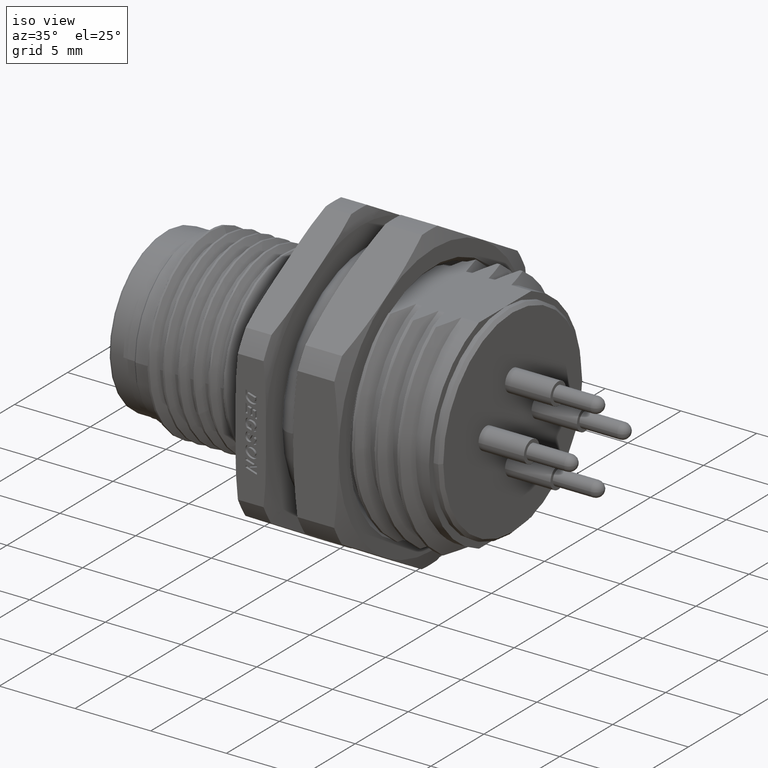
[diagram: clean part render]
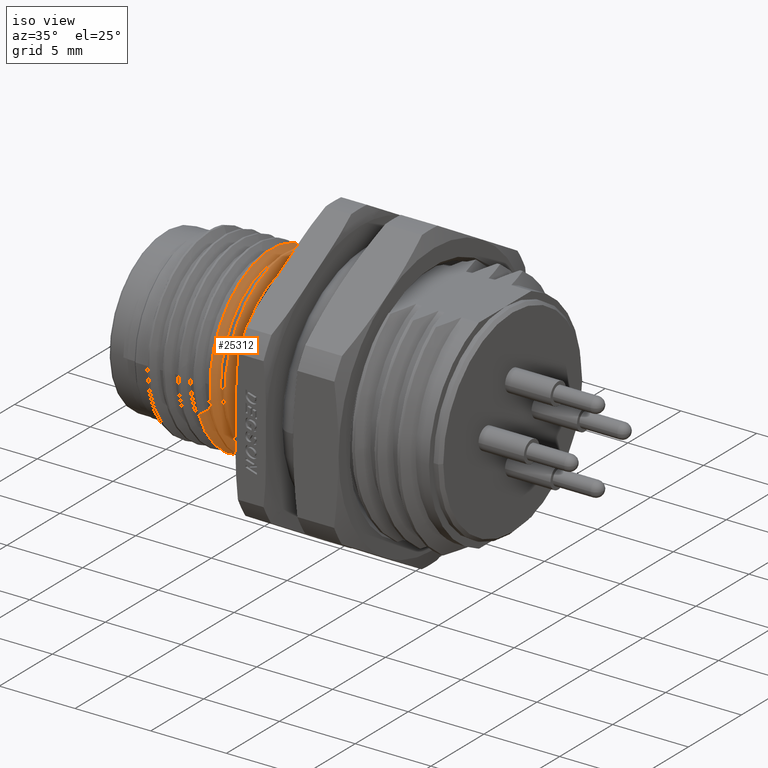
[diagram: same view with one face highlighted and labeled with its STEP entity id]
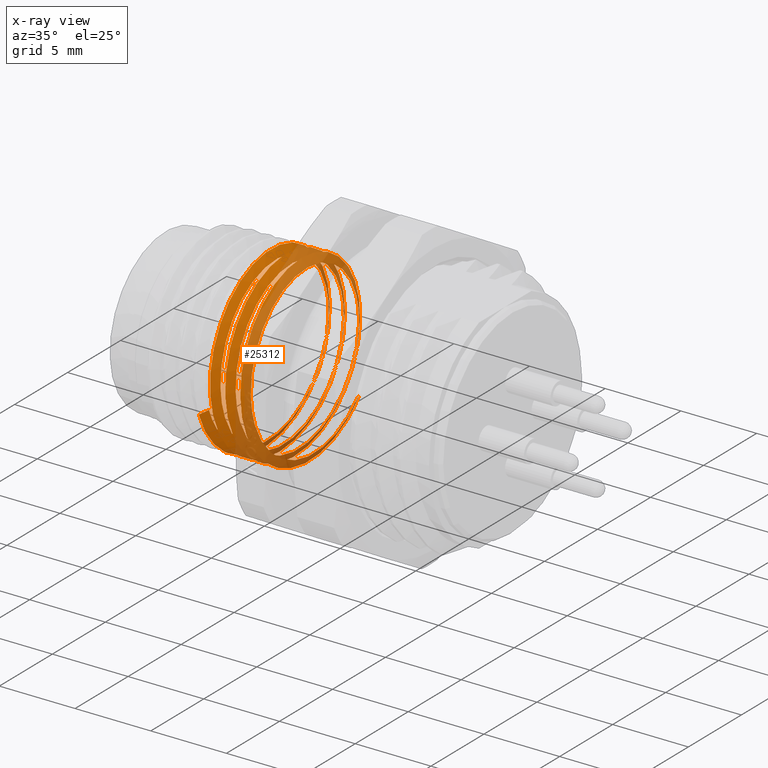
[diagram: x-ray of the same camera — body ghosted, the highlighted face saturated]
A machine part, iso view. The second image highlights one B-rep face of the part: STEP entity #25312.
The next image is the same camera in x-ray: the body ghosted, the highlighted face saturated — about 50% of this face is hidden behind the body in this view.
In plain terms, the highlighted face is a freeform B-spline surface patch.
Its self-contained STEP definition (entity closure, byte-faithful):
#7289=CARTESIAN_POINT('',(5.925110370693E0,-5.458486623382E0,
-6.508459232032E-7));
#7290=CARTESIAN_POINT('',(5.915794530344E0,-5.458486623382E0,
3.175164562811E-1));
#7291=CARTESIAN_POINT('',(5.897398820951E0,-5.402963582117E0,
9.527107832475E-1));
#7292=CARTESIAN_POINT('',(5.869516789582E0,-5.155028438241E0,1.878134431760E0));
#7293=CARTESIAN_POINT('',(5.841752862802E0,-4.749833229217E0,2.744389146734E0));
#7294=CARTESIAN_POINT('',(5.814360716254E0,-4.210128233941E0,3.517571678540E0));
#7295=CARTESIAN_POINT('',(5.786251870837E0,-3.527073921524E0,4.203012147019E0));
#7296=CARTESIAN_POINT('',(5.758453965010E0,-2.742618346337E0,4.751458251939E0));
#7297=CARTESIAN_POINT('',(5.730633951101E0,-1.874672530977E0,5.156246394190E0));
#7298=CARTESIAN_POINT('',(5.702753435498E0,-9.473025774405E-1,
5.404117956681E0));
#7299=CARTESIAN_POINT('',(5.674859612337E0,9.509390491268E-3,5.486482976344E0));
#7300=CARTESIAN_POINT('',(5.647028254327E0,9.638256590380E-1,5.400904690996E0));
#7301=CARTESIAN_POINT('',(5.619307952163E0,1.885253263716E0,5.152180284314E0));
#7302=CARTESIAN_POINT('',(5.591540297840E0,2.750729082853E0,4.746514933760E0));
#7303=CARTESIAN_POINT('',(5.563905997095E0,3.529912217172E0,4.200330703330E0));
#7304=CARTESIAN_POINT('',(5.535825324118E0,4.211932354483E0,3.515366221299E0));
#7305=CARTESIAN_POINT('',(5.508495108288E0,4.750150322567E0,2.743491182476E0));
#7306=CARTESIAN_POINT('',(5.480795442930E0,5.154248899955E0,1.879958864219E0));
#7307=CARTESIAN_POINT('',(5.452984548675E0,5.402658505537E0,9.548343715799E-1));
#7308=CARTESIAN_POINT('',(5.434404117846E0,5.458459441998E0,3.184745102089E-1));
#7309=CARTESIAN_POINT('',(5.425110462753E0,5.458459490254E0,1.237825240478E-6));
#7378=CARTESIAN_POINT('',(6.925111085119E0,-5.458502238438E0,
-3.738053958092E-7));
#7379=CARTESIAN_POINT('',(6.915912869818E0,-5.458502238438E0,
3.174740078750E-1));
#7380=CARTESIAN_POINT('',(6.897339430187E0,-5.403009243804E0,
9.526828735719E-1));
#7381=CARTESIAN_POINT('',(6.869504636492E0,-5.154695591217E0,1.879143926781E0));
#7382=CARTESIAN_POINT('',(6.841720435876E0,-4.749370368153E0,2.745178168241E0));
#7383=CARTESIAN_POINT('',(6.814330372411E0,-4.209416275132E0,3.518422439133E0));
#7384=CARTESIAN_POINT('',(6.786222395907E0,-3.526324350431E0,4.203671398434E0));
#7385=CARTESIAN_POINT('',(6.758405301246E0,-2.741166713966E0,4.752304101825E0));
#7386=CARTESIAN_POINT('',(6.730596289638E0,-1.873450122107E0,5.156692046801E0));
#7387=CARTESIAN_POINT('',(6.702699568632E0,-9.454815665382E-1,
5.404455226922E0));
#7388=CARTESIAN_POINT('',(6.674810315376E0,1.121456631148E-2,5.486476465051E0));
#7389=CARTESIAN_POINT('',(6.646974194744E0,9.656550849998E-1,5.400574347867E0));
#7390=CARTESIAN_POINT('',(6.619264983716E0,1.886640798320E0,5.151649848146E0));
#7391=CARTESIAN_POINT('',(6.591505727146E0,2.751743254871E0,4.745893937096E0));
#7392=CARTESIAN_POINT('',(6.563886495408E0,3.530423197912E0,4.199894115700E0));
#7393=CARTESIAN_POINT('',(6.535800061601E0,4.212492351141E0,3.514689707507E0));
#7394=CARTESIAN_POINT('',(6.508484607372E0,4.750285901215E0,2.743180282447E0));
#7395=CARTESIAN_POINT('',(6.480799327785E0,5.154225826655E0,1.880008595225E0));
#7396=CARTESIAN_POINT('',(6.452981404805E0,5.402605067741E0,9.549741939797E-1));
#7397=CARTESIAN_POINT('',(6.434420233179E0,5.458523486102E0,3.185452750054E-1));
#7398=CARTESIAN_POINT('',(6.425110639427E0,5.458523487219E0,3.189784122326E-8));
#7455=CARTESIAN_POINT('',(7.925110493385E0,-5.458465579466E0,
-1.001484852251E-6));
#7456=CARTESIAN_POINT('',(7.915820966865E0,-5.458465579466E0,
3.174527333691E-1));
#7457=CARTESIAN_POINT('',(7.897386766602E0,-5.403057389031E0,
9.527086190401E-1));
#7458=CARTESIAN_POINT('',(7.869465731211E0,-5.154432730622E0,1.879932219949E0));
#7459=CARTESIAN_POINT('',(7.841702933246E0,-4.748975308353E0,2.745835442094E0));
#7460=CARTESIAN_POINT('',(7.814308134483E0,-4.208966258774E0,3.518975303898E0));
#7461=CARTESIAN_POINT('',(7.786188639750E0,-3.525450975055E0,4.204467728741E0));
#7462=CARTESIAN_POINT('',(7.758348528981E0,-2.739481840300E0,4.753289128844E0));
#7463=CARTESIAN_POINT('',(7.730549936198E0,-1.871937185482E0,5.157217697019E0));
#7464=CARTESIAN_POINT('',(7.702663601115E0,-9.442524151069E-1,
5.404622452146E0));
#7465=CARTESIAN_POINT('',(7.674812215012E0,1.114681884655E-2,5.486394283567E0));
#7466=CARTESIAN_POINT('',(7.647000990795E0,9.647512512945E-1,5.400735740660E0));
#7467=CARTESIAN_POINT('',(7.619286981291E0,1.885901718212E0,5.151876264127E0));
#7468=CARTESIAN_POINT('',(7.591541012385E0,2.750765107404E0,4.746598579047E0));
#7469=CARTESIAN_POINT('',(7.563832488381E0,3.531853953024E0,4.198715843473E0));
#7470=CARTESIAN_POINT('',(7.535810410281E0,4.212208801730E0,3.514943663324E0));
#7471=CARTESIAN_POINT('',(7.508444644868E0,4.751131670345E0,2.741975754108E0));
#7472=CARTESIAN_POINT('',(7.480728043961E0,5.154941302043E0,1.877958844387E0));
#7473=CARTESIAN_POINT('',(7.452970472866E0,5.402798074756E0,9.536729715237E-1));
#7474=CARTESIAN_POINT('',(7.434352497490E0,5.458464438132E0,3.180320471124E-1));
#7475=CARTESIAN_POINT('',(7.425110925114E0,5.458464482155E0,1.122792286259E-6));
#7666=CARTESIAN_POINT('',(4.662469055234E0,-5.706252821370E0,
-1.854074129763E0));
#7799=CARTESIAN_POINT('',(4.662469055234E0,-5.706252821370E0,
-1.854074129763E0));
#7800=CARTESIAN_POINT('',(4.671470650106E0,-5.601283386697E0,
-2.176776230283E0));
#7801=CARTESIAN_POINT('',(4.689486597849E0,-5.336259243811E0,
-2.805953332878E0));
#7802=CARTESIAN_POINT('',(4.716718465051E0,-4.781197710405E0,
-3.673454744555E0));
#7803=CARTESIAN_POINT('',(4.743978574449E0,-4.084540456177E0,
-4.434275645975E0));
#7804=CARTESIAN_POINT('',(4.770931249224E0,-3.279017508589E0,
-5.059466460933E0));
#7805=CARTESIAN_POINT('',(4.798318653011E0,-2.364297964183E0,
-5.546506797961E0));
#7806=CARTESIAN_POINT('',(4.825499281108E0,-1.387282182532E0,
-5.867495563236E0));
#7807=CARTESIAN_POINT('',(4.852793804084E0,-3.655097018217E-1,
-6.017927684686E0));
#7808=CARTESIAN_POINT('',(4.879753249137E0,6.540894411436E-1,
-5.993024821370E0));
#7809=CARTESIAN_POINT('',(4.906821844547E0,1.659264062088E0,-5.796311990389E0));
#7810=CARTESIAN_POINT('',(4.934087404009E0,2.623099014193E0,-5.428826748387E0));
#7811=CARTESIAN_POINT('',(4.961294245040E0,3.508317013551E0,-4.903128294750E0));
#7812=CARTESIAN_POINT('',(4.988373138010E0,4.287615421176E0,-4.238244749590E0));
#7813=CARTESIAN_POINT('',(5.015361653199E0,4.941330831713E0,-3.453671920989E0));
#7814=CARTESIAN_POINT('',(5.042337494307E0,5.453076102597E0,-2.570810250425E0));
#7815=CARTESIAN_POINT('',(5.069328336479E0,5.808888725008E0,-1.613459976896E0));
#7816=CARTESIAN_POINT('',(5.096384761811E0,5.998001574273E0,
-6.075798488491E-1));
#7817=CARTESIAN_POINT('',(5.123297077740E0,6.014651334310E0,4.106351865368E-1));
#7818=CARTESIAN_POINT('',(5.150421939757E0,5.858440901143E0,1.424798129379E0));
#7819=CARTESIAN_POINT('',(5.177639269930E0,5.530407064312E0,2.401106313587E0));
#7820=CARTESIAN_POINT('',(5.204862562472E0,5.041167767986E0,3.307418562429E0));
#7821=CARTESIAN_POINT('',(5.232039495884E0,4.405310429417E0,4.115603362966E0));
#7822=CARTESIAN_POINT('',(5.258978017317E0,3.649366642781E0,4.799099680813E0));
#7823=CARTESIAN_POINT('',(5.286323000053E0,2.775253285785E0,5.352797758679E0));
#7824=CARTESIAN_POINT('',(5.313571373309E0,1.822716687912E0,5.747098985327E0));
#7825=CARTESIAN_POINT('',(5.340769471753E0,8.186853806346E-1,5.973131619624E0));
#7826=CARTESIAN_POINT('',(5.367856097803E0,-2.047034760928E-1,
6.025543025657E0));
#7827=CARTESIAN_POINT('',(5.395007108473E0,-1.224767766911E0,5.903179110186E0));
#7828=CARTESIAN_POINT('',(5.422030611747E0,-2.204516743732E0,5.611309646237E0));
#7829=CARTESIAN_POINT('',(5.449171639200E0,-3.125185840456E0,5.156136532347E0));
#7830=CARTESIAN_POINT('',(5.476521833535E0,-3.960826070178E0,4.545962727514E0));
#7831=CARTESIAN_POINT('',(5.503765019840E0,-4.677282613841E0,3.804593023099E0));
#7832=CARTESIAN_POINT('',(5.530952991984E0,-5.255371466829E0,2.953955891078E0));
#7833=CARTESIAN_POINT('',(5.557745769923E0,-5.675792923084E0,2.031410085134E0));
#7834=CARTESIAN_POINT('',(5.584763520775E0,-5.937944666096E0,1.043591575228E0));
#7835=CARTESIAN_POINT('',(5.611844497588E0,-6.028825527578E0,
2.285698679053E-2));
#7836=CARTESIAN_POINT('',(5.638927595389E0,-5.945697009573E0,
-9.983113417087E-1));
#7837=CARTESIAN_POINT('',(5.665999524284E0,-5.690786350312E0,
-1.990489092459E0));
#7838=CARTESIAN_POINT('',(5.693094318424E0,-5.271495296951E0,
-2.925810636269E0));
#7839=CARTESIAN_POINT('',(5.720239087202E0,-4.698365335775E0,
-3.778212377744E0));
#7840=CARTESIAN_POINT('',(5.747442970770E0,-3.987478717460E0,
-4.522436580748E0));
#7841=CARTESIAN_POINT('',(5.774656302620E0,-3.159510813003E0,
-5.134659483084E0));
#7842=CARTESIAN_POINT('',(5.801699178769E0,-2.245949549843E0,
-5.595253656346E0));
#7843=CARTESIAN_POINT('',(5.829043680416E0,-1.256225605089E0,
-5.896965038250E0));
#7844=CARTESIAN_POINT('',(5.856207353332E0,-2.364538119267E-1,
-6.024612193289E0));
#7845=CARTESIAN_POINT('',(5.883486573312E0,7.946268146440E-1,
-5.976379891241E0));
#7846=CARTESIAN_POINT('',(5.910442613635E0,1.790454479784E0,-5.756670703323E0));
#7847=CARTESIAN_POINT('',(5.937568454924E0,2.741268383917E0,-5.370032752075E0));
#7848=CARTESIAN_POINT('',(5.964861865467E0,3.617423983248E0,-4.823618304621E0));
#7849=CARTESIAN_POINT('',(5.992081756861E0,4.385502987304E0,-4.137276125018E0));
#7850=CARTESIAN_POINT('',(6.019189551246E0,5.023009248531E0,-3.334053398360E0));
#7851=CARTESIAN_POINT('',(6.046215207046E0,5.514392832823E0,-2.437150377700E0));
#7852=CARTESIAN_POINT('',(6.073337032639E0,5.847501566170E0,-1.466786350901E0));
#7853=CARTESIAN_POINT('',(6.100219721160E0,6.011061331115E0,
-4.627386039418E-1));
#7854=CARTESIAN_POINT('',(6.127519820068E0,6.002452822330E0,5.699580836630E-1));
#7855=CARTESIAN_POINT('',(6.154776962969E0,5.817345614825E0,1.584749108857E0));
#7856=CARTESIAN_POINT('',(6.182096548445E0,5.461140922532E0,2.554952897085E0));
#7857=CARTESIAN_POINT('',(6.209183899849E0,4.948933583051E0,3.442792235255E0));
#7858=CARTESIAN_POINT('',(6.236180913034E0,4.297044259543E0,4.228968178883E0));
#7859=CARTESIAN_POINT('',(6.263420359559E0,3.514062554331E0,4.899335432557E0));
#7860=CARTESIAN_POINT('',(6.290636102695E0,2.629160190222E0,5.425741240813E0));
#7861=CARTESIAN_POINT('',(6.317864928287E0,1.666928007314E0,5.794192290957E0));
#7862=CARTESIAN_POINT('',(6.345071430522E0,6.570858204695E-1,5.993235790993E0));
#7863=CARTESIAN_POINT('',(6.372246571100E0,-3.709413138592E-1,
6.017596585270E0));
#7864=CARTESIAN_POINT('',(6.399374820854E0,-1.386215849458E0,5.867572122497E0));
#7865=CARTESIAN_POINT('',(6.426569932482E0,-2.363850765609E0,5.546302905369E0));
#7866=CARTESIAN_POINT('',(6.453649117202E0,-3.268647374470E0,5.065917347954E0));
#7867=CARTESIAN_POINT('',(6.480819889074E0,-4.082200330774E0,4.437200084780E0));
#7868=CARTESIAN_POINT('',(6.508153949201E0,-4.780341690761E0,3.674366546401E0));
#7869=CARTESIAN_POINT('',(6.535379315481E0,-5.336170313009E0,2.806825546427E0));
#7870=CARTESIAN_POINT('',(6.562611562151E0,-5.735447211102E0,1.857215462274E0));
#7871=CARTESIAN_POINT('',(6.589416743893E0,-5.965627779530E0,
8.693387618543E-1));
#7872=CARTESIAN_POINT('',(6.616621937020E0,-6.027193503466E0,
-1.579331785123E-1));
#7873=CARTESIAN_POINT('',(6.643794344359E0,-5.912512030327E0,
-1.179811082188E0));
#7874=CARTESIAN_POINT('',(6.670958888469E0,-5.626193624549E0,
-2.166743111279E0));
#7875=CARTESIAN_POINT('',(6.698065071805E0,-5.177475365046E0,
-3.089105947281E0));
#7876=CARTESIAN_POINT('',(6.725217742668E0,-4.577977992300E0,
-3.923231905660E0));
#7877=CARTESIAN_POINT('',(6.752336156716E0,-3.846184915512E0,
-4.642561589321E0));
#7878=CARTESIAN_POINT('',(6.779382379796E0,-3.005897984064E0,
-5.226411251744E0));
#7879=CARTESIAN_POINT('',(6.806714444317E0,-2.068514801817E0,
-5.663377743464E0));
#7880=CARTESIAN_POINT('',(6.833891192755E0,-1.076120751523E0,
-5.932465241015E0));
#7881=CARTESIAN_POINT('',(6.861196078099E0,-4.744910339321E-2,
-6.028815825815E0));
#7882=CARTESIAN_POINT('',(6.888131953258E0,9.685560711474E-1,
-5.950366472340E0));
#7883=CARTESIAN_POINT('',(6.915311140396E0,1.965996982159E0,-5.699815350450E0));
#7884=CARTESIAN_POINT('',(6.942586769452E0,2.909114206046E0,-5.281012117029E0));
#7885=CARTESIAN_POINT('',(6.969812853882E0,3.765677112608E0,-4.708519755620E0));
#7886=CARTESIAN_POINT('',(6.996936368800E0,4.509393626648E0,-4.001578144822E0));
#7887=CARTESIAN_POINT('',(7.023988396236E0,5.121323799912E0,-3.180981320596E0));
#7888=CARTESIAN_POINT('',(7.050996340722E0,5.584794830123E0,-2.270470994667E0));
#7889=CARTESIAN_POINT('',(7.077998171828E0,5.888161841070E0,-1.294792931318E0));
#7890=CARTESIAN_POINT('',(7.105025114112E0,6.021972452294E0,
-2.812208252537E-1));
#7891=CARTESIAN_POINT('',(7.131923306854E0,5.983782338157E0,7.359020571169E-1));
#7892=CARTESIAN_POINT('',(7.159165704809E0,5.771457382431E0,1.744351946635E0));
#7893=CARTESIAN_POINT('',(7.186405992646E0,5.390005936213E0,2.702059614529E0));
#7894=CARTESIAN_POINT('',(7.213712865507E0,4.849453168483E0,3.582395420340E0));
#7895=CARTESIAN_POINT('',(7.240769209960E0,4.173018583586E0,4.350915922978E0));
#7896=CARTESIAN_POINT('',(7.267767143119E0,3.378924729426E0,4.993199442550E0));
#7897=CARTESIAN_POINT('',(7.295050119326E0,2.477662653838E0,5.496773731533E0));
#7898=CARTESIAN_POINT('',(7.322267139555E0,1.506129080225E0,5.837964731126E0));
#7899=CARTESIAN_POINT('',(7.349444256687E0,4.920710770403E-1,6.008888761265E0));
#7900=CARTESIAN_POINT('',(7.376551868961E0,-5.334709051045E-1,
6.005480248951E0));
#7901=CARTESIAN_POINT('',(7.403785017563E0,-1.548326753579E0,5.826769645631E0));
#7902=CARTESIAN_POINT('',(7.430783493154E0,-2.509671258117E0,5.481695796997E0));
#7903=CARTESIAN_POINT('',(7.458036035593E0,-3.407416411345E0,4.974265132947E0));
#7904=CARTESIAN_POINT('',(7.485294946835E0,-4.205129535629E0,4.320655800016E0));
#7905=CARTESIAN_POINT('',(7.512504468895E0,-4.878929986459E0,3.542088531896E0));
#7906=CARTESIAN_POINT('',(7.539557429832E0,-5.407111930159E0,2.665547519782E0));
#7907=CARTESIAN_POINT('',(7.566370932024E0,-5.777691188550E0,1.721054958079E0));
#7908=CARTESIAN_POINT('',(7.593443961458E0,-5.986005359696E0,
7.183351528482E-1));
#7909=CARTESIAN_POINT('',(7.620518950401E0,-6.021116488714E0,
-3.056084050416E-1));
#7910=CARTESIAN_POINT('',(7.647559739712E0,-5.882649597146E0,
-1.319122791817E0));
#7911=CARTESIAN_POINT('',(7.674557949802E0,-5.575482700863E0,
-2.293445592602E0));
#7912=CARTESIAN_POINT('',(7.701595774116E0,-5.107642646175E0,
-3.203003271015E0));
#7913=CARTESIAN_POINT('',(7.728716648424E0,-4.490592247011E0,
-4.023048690001E0));
#7914=CARTESIAN_POINT('',(7.755923793865E0,-3.740855716899E0,
-4.728269871915E0));
#7915=CARTESIAN_POINT('',(7.783057920394E0,-2.884160368236E0,
-5.294188762637E0));
#7916=CARTESIAN_POINT('',(7.810114657191E0,-1.947087994069E0,
-5.706106522628E0));
#7917=CARTESIAN_POINT('',(7.837430817352E0,-9.438644124791E-1,
-5.954904161639E0));
#7918=CARTESIAN_POINT('',(7.864585164962E0,8.087148488453E-2,
-6.028772249688E0));
#7919=CARTESIAN_POINT('',(7.891921976943E0,1.110094015820E0,-5.925893495449E0));
#7920=CARTESIAN_POINT('',(7.918813204261E0,2.090656875982E0,-5.654574783860E0));
#7921=CARTESIAN_POINT('',(7.946055120825E0,3.023544784596E0,-5.216544969102E0));
#7922=CARTESIAN_POINT('',(7.973309643802E0,3.868597013800E0,-4.624477682422E0));
#7923=CARTESIAN_POINT('',(7.991517668852E0,4.356133034186E0,-4.139967875771E0));
#7924=CARTESIAN_POINT('',(8.000598707125E0,4.577536662223E0,-3.878857876283E0));
#8057=DIRECTION('',(5.000411336702E-1,8.236164563603E-1,2.676094121109E-1));
#8058=VECTOR('',#8057,6.252012864018E-1);
#8059=CARTESIAN_POINT('',(4.662469055234E0,-5.706252821370E0,
-1.854074129763E0));
#8060=LINE('',#8059,#8058);
#8061=DIRECTION('',(-5.000372812973E-1,6.606998016365E-1,-5.598557755621E-1));
#8062=VECTOR('',#8061,6.252363343697E-1);
#8063=CARTESIAN_POINT('',(8.313240183932E0,4.164443140129E0,-3.528815703395E0));
#8064=LINE('',#8063,#8062);
#8065=CARTESIAN_POINT('',(6.425110639427E0,5.458523487219E0,3.189784122326E-8));
#8066=CARTESIAN_POINT('',(6.415831573781E0,5.458523488332E0,
-3.175006347238E-1));
#8067=CARTESIAN_POINT('',(6.397380151113E0,5.402972130931E0,
-9.527088144131E-1));
#8068=CARTESIAN_POINT('',(6.369506427534E0,5.154855390627E0,-1.878662979911E0));
#8069=CARTESIAN_POINT('',(6.341738233399E0,4.749608466694E0,-2.744770377227E0));
#8070=CARTESIAN_POINT('',(6.314344738789E0,4.209762855537E0,-3.518008191243E0));
#8071=CARTESIAN_POINT('',(6.286238271504E0,3.526724216906E0,-4.203317747578E0));
#8072=CARTESIAN_POINT('',(6.258430553120E0,2.741921946831E0,-4.751865339186E0));
#8073=CARTESIAN_POINT('',(6.230615829427E0,1.874083930075E0,-5.156461541337E0));
#8074=CARTESIAN_POINT('',(6.202726808402E0,9.464029051049E-1,
-5.404285975875E0));
#8075=CARTESIAN_POINT('',(6.174834555307E0,-1.037613345181E-2,
-5.486481212272E0));
#8076=CARTESIAN_POINT('',(6.147000439091E0,-9.647671261657E-1,
-5.400734455017E0));
#8077=CARTESIAN_POINT('',(6.119285825158E0,-1.885967614991E0,
-5.151908961351E0));
#8078=CARTESIAN_POINT('',(6.091521335891E0,-2.751288841005E0,
-4.746175019832E0));
#8079=CARTESIAN_POINT('',(6.063894659127E0,-3.530203160786E0,
-4.200081817826E0));
#8080=CARTESIAN_POINT('',(6.035811948295E0,-4.212244139160E0,
-3.514989496802E0));
#8081=CARTESIAN_POINT('',(6.008486838515E0,-4.750231630611E0,
-2.743309601695E0));
#8082=CARTESIAN_POINT('',(5.980803977406E0,-5.154238517116E0,
-1.879975952893E0));
#8083=CARTESIAN_POINT('',(5.952960909323E0,-5.402633248460E0,
-9.549077723851E-1));
#8084=CARTESIAN_POINT('',(5.934455364156E0,-5.458486594898E0,
-3.185108396740E-1));
#8085=CARTESIAN_POINT('',(5.925110370693E0,-5.458486623382E0,
-6.508459232032E-7));
#8153=CARTESIAN_POINT('',(4.975095415259E0,-5.191326753352E0,
-1.686764381058E0));
#8186=CARTESIAN_POINT('',(5.425110462753E0,5.458459490254E0,1.237825240478E-6));
#8187=CARTESIAN_POINT('',(5.416279300431E0,5.458459512716E0,
-3.026238797471E-1));
#8188=CARTESIAN_POINT('',(5.398668890974E0,5.407934099065E0,
-9.081672095932E-1));
#8189=CARTESIAN_POINT('',(5.372194557254E0,5.183417999231E0,-1.790630282231E0));
#8190=CARTESIAN_POINT('',(5.345594744481E0,4.812737383476E0,-2.627751769989E0));
#8191=CARTESIAN_POINT('',(5.319501383458E0,4.319321460853E0,-3.378074696295E0));
#8192=CARTESIAN_POINT('',(5.292867105031E0,3.696767895005E0,-4.050774208468E0));
#8193=CARTESIAN_POINT('',(5.266393293308E0,2.974779109342E0,-4.606631955733E0));
#8194=CARTESIAN_POINT('',(5.239897815171E0,2.170409622607E0,-5.036091072782E0));
#8195=CARTESIAN_POINT('',(5.213330697487E0,1.303476994930E0,-5.326721969359E0));
#8196=CARTESIAN_POINT('',(5.186815466980E0,4.020892541310E-1,
-5.468966436159E0));
#8197=CARTESIAN_POINT('',(5.160351253223E0,-5.086641478872E-1,
-5.460124598471E0));
#8198=CARTESIAN_POINT('',(5.133856486582E0,-1.406332878329E0,
-5.300243639656E0));
#8199=CARTESIAN_POINT('',(5.107413965791E0,-2.263713714277E0,
-4.994966268745E0));
#8200=CARTESIAN_POINT('',(5.080779916135E0,-3.063757598280E0,
-4.547795246590E0));
#8201=CARTESIAN_POINT('',(5.054625986425E0,-3.766507787978E0,
-3.985116317328E0));
#8202=CARTESIAN_POINT('',(5.028056470433E0,-4.376412626067E0,
-3.304572451426E0));
#8203=CARTESIAN_POINT('',(5.001667326156E0,-4.862484295713E0,
-2.535095790729E0));
#8204=CARTESIAN_POINT('',(4.983866961034E0,-5.097756161780E0,
-1.974745095575E0));
#8205=CARTESIAN_POINT('',(4.975095415259E0,-5.191326753352E0,
-1.686764381058E0));
#8388=CARTESIAN_POINT('',(7.425110925114E0,5.458464482155E0,1.122792286259E-6));
#8389=CARTESIAN_POINT('',(7.415886291325E0,5.458464502282E0,
-3.174473658718E-1));
#8390=CARTESIAN_POINT('',(7.397355344108E0,5.403047604590E0,
-9.526248881175E-1));
#8391=CARTESIAN_POINT('',(7.369494921249E0,5.154630137447E0,-1.879317654434E0));
#8392=CARTESIAN_POINT('',(7.341723113097E0,4.749378670261E0,-2.745131579060E0));
#8393=CARTESIAN_POINT('',(7.314336463514E0,4.209557684388E0,-3.518246032079E0));
#8394=CARTESIAN_POINT('',(7.286226362965E0,3.526438074168E0,-4.203602111890E0));
#8395=CARTESIAN_POINT('',(7.258399001513E0,2.740980654184E0,-4.752413303487E0));
#8396=CARTESIAN_POINT('',(7.230600723932E0,1.873582122626E0,-5.156612079483E0));
#8397=CARTESIAN_POINT('',(7.202721381903E0,9.462125376122E-1,
-5.404276195709E0));
#8398=CARTESIAN_POINT('',(7.174865117146E0,-9.321953511443E-3,
-5.486406410811E0));
#8399=CARTESIAN_POINT('',(7.147054315143E0,-9.629408781703E-1,
-5.401053616654E0));
#8400=CARTESIAN_POINT('',(7.119338847802E0,-1.884230299057E0,
-5.152507813158E0));
#8401=CARTESIAN_POINT('',(7.091582170436E0,-2.749535303995E0,
-4.747313327351E0));
#8402=CARTESIAN_POINT('',(7.063880409569E0,-3.530595519618E0,
-4.199772253726E0));
#8403=CARTESIAN_POINT('',(7.035857411981E0,-4.211132412793E0,
-3.516179574432E0));
#8404=CARTESIAN_POINT('',(7.008518936113E0,-4.749865215027E0,
-2.744147174794E0));
#8405=CARTESIAN_POINT('',(6.980769107130E0,-5.154493172438E0,
-1.879460406338E0));
#8406=CARTESIAN_POINT('',(6.952991245089E0,-5.402790751144E0,
-9.539112136381E-1));
#8407=CARTESIAN_POINT('',(6.934325978842E0,-5.458502222103E0,
-3.180500820181E-1));
#8408=CARTESIAN_POINT('',(6.925111085119E0,-5.458502238438E0,
-3.738053958092E-7));
#8414=CARTESIAN_POINT('',(8.313240183932E0,4.164443140129E0,-3.528815703395E0));
#8415=CARTESIAN_POINT('',(8.303946172235E0,3.959707432750E0,-3.770429362452E0));
#8416=CARTESIAN_POINT('',(8.285576394844E0,3.507751780528E0,-4.218458978421E0));
#8417=CARTESIAN_POINT('',(8.257698501659E0,2.720540498120E0,-4.764274152467E0));
#8418=CARTESIAN_POINT('',(8.229934730313E0,1.851798523902E0,-5.164465203974E0));
#8419=CARTESIAN_POINT('',(8.202090992686E0,9.247845231311E-1,
-5.407555626441E0));
#8420=CARTESIAN_POINT('',(8.174565566701E0,-1.966098497757E-2,
-5.485848080254E0));
#8421=CARTESIAN_POINT('',(8.146868655504E0,-9.692126444039E-1,
-5.399820810965E0));
#8422=CARTESIAN_POINT('',(8.119211171435E0,-1.888321531439E0,
-5.150930890028E0));
#8423=CARTESIAN_POINT('',(8.091441529158E0,-2.753821015108E0,
-4.744994018582E0));
#8424=CARTESIAN_POINT('',(8.063681070695E0,-3.535778081045E0,
-4.195311728839E0));
#8425=CARTESIAN_POINT('',(8.035746348401E0,-4.213612371410E0,
-3.513185193603E0));
#8426=CARTESIAN_POINT('',(8.008295692654E0,-4.753847909480E0,
-2.737739582084E0));
#8427=CARTESIAN_POINT('',(7.980548156565E0,-5.157026459744E0,
-1.871745655231E0));
#8428=CARTESIAN_POINT('',(7.952904160271E0,-5.402747782499E0,
-9.524935795575E-1));
#8429=CARTESIAN_POINT('',(7.934407283231E0,-5.458465535749E0,
-3.177020855679E-1));
#8430=CARTESIAN_POINT('',(7.925110493385E0,-5.458465579466E0,
-1.001484852251E-6));
#8460=CARTESIAN_POINT('',(8.000598707125E0,4.577536662223E0,-3.878857876283E0));
#13526=VERTEX_POINT('',#7455);
#13527=VERTEX_POINT('',#7475);
#13534=VERTEX_POINT('',#8414);
#13537=VERTEX_POINT('',#8460);
#13544=VERTEX_POINT('',#8408);
#13574=VERTEX_POINT('',#7666);
#13587=VERTEX_POINT('',#8153);
#13589=VERTEX_POINT('',#8186);
#13590=VERTEX_POINT('',#7289);
#13592=VERTEX_POINT('',#8065);
#25026=CARTESIAN_POINT('',(4.980895307194E0,-5.324016188917E0,
-9.686963275195E-1));
#25027=CARTESIAN_POINT('',(4.858575586915E0,-5.532453822454E0,
-1.006621225371E0));
#25028=CARTESIAN_POINT('',(4.736255866636E0,-5.740891455991E0,
-1.044546123222E0));
#25029=CARTESIAN_POINT('',(4.613936146357E0,-5.949329089528E0,
-1.082471021073E0));
#25030=CARTESIAN_POINT('',(4.988014237771E0,-5.280885170667E0,
-1.206866695046E0));
#25031=CARTESIAN_POINT('',(4.865694517492E0,-5.487634205398E0,
-1.254116070139E0));
#25032=CARTESIAN_POINT('',(4.743374797213E0,-5.694383240130E0,
-1.301365445231E0));
#25033=CARTESIAN_POINT('',(4.621055076934E0,-5.901132274862E0,
-1.348614820324E0));
#25034=CARTESIAN_POINT('',(5.009041748105E0,-5.105331840359E0,
-1.901530548997E0));
#25035=CARTESIAN_POINT('',(4.886722027826E0,-5.305207883080E0,
-1.975976327084E0));
#25036=CARTESIAN_POINT('',(4.764402307546E0,-5.505083925802E0,
-2.050422105171E0));
#25037=CARTESIAN_POINT('',(4.642082587267E0,-5.704959968523E0,
-2.124867883258E0));
#25038=CARTESIAN_POINT('',(5.048150740606E0,-4.528300422372E0,
-3.112345954901E0));
#25039=CARTESIAN_POINT('',(4.925831020326E0,-4.705585424989E0,
-3.234195701891E0));
#25040=CARTESIAN_POINT('',(4.803511300047E0,-4.882870427606E0,
-3.356045448881E0));
#25041=CARTESIAN_POINT('',(4.681191579767E0,-5.060155430223E0,
-3.477895195870E0));
#25042=CARTESIAN_POINT('',(5.098222286805E0,-3.354946777029E0,
-4.380086755561E0));
#25043=CARTESIAN_POINT('',(4.975902566525E0,-3.486294455554E0,
-4.551569126316E0));
#25044=CARTESIAN_POINT('',(4.853582846246E0,-3.617642134079E0,
-4.723051497072E0));
#25045=CARTESIAN_POINT('',(4.731263125966E0,-3.748989812604E0,
-4.894533867827E0));
#25046=CARTESIAN_POINT('',(5.152466733306E0,-1.697843413205E0,
-5.249588057740E0));
#25047=CARTESIAN_POINT('',(5.030147013026E0,-1.764314748116E0,
-5.455111796394E0));
#25048=CARTESIAN_POINT('',(4.907827292746E0,-1.830786083027E0,
-5.660635535048E0));
#25049=CARTESIAN_POINT('',(4.785507572466E0,-1.897257417938E0,
-5.866159273702E0));
#25050=CARTESIAN_POINT('',(5.206711179806E0,1.545860730239E-1,
-5.515155886266E0));
#25051=CARTESIAN_POINT('',(5.084391459526E0,1.606381874610E-1,
-5.731076725108E0));
#25052=CARTESIAN_POINT('',(4.962071739247E0,1.666903018981E-1,
-5.946997563951E0));
#25053=CARTESIAN_POINT('',(4.839752018967E0,1.727424163352E-1,
-6.162918402793E0));
#25054=CARTESIAN_POINT('',(5.260955626307E0,1.989231365778E0,
-5.146241482281E0));
#25055=CARTESIAN_POINT('',(5.138635906027E0,2.067110670372E0,
-5.347719155924E0));
#25056=CARTESIAN_POINT('',(5.016316185747E0,2.144989974967E0,
-5.549196829566E0));
#25057=CARTESIAN_POINT('',(4.893996465467E0,2.222869279562E0,
-5.750674503209E0));
#25058=CARTESIAN_POINT('',(5.315200072807E0,3.595028520192E0,
-4.185285223821E0));
#25059=CARTESIAN_POINT('',(5.192880352527E0,3.735775507177E0,
-4.349141026803E0));
#25060=CARTESIAN_POINT('',(5.070560632248E0,3.876522494162E0,
-4.512996829786E0));
#25061=CARTESIAN_POINT('',(4.948240911968E0,4.017269481146E0,
-4.676852632769E0));
#25062=CARTESIAN_POINT('',(5.369444519308E0,4.787240973105E0,
-2.742839113302E0));
#25063=CARTESIAN_POINT('',(5.247124799028E0,4.974663614999E0,
-2.850222500892E0));
#25064=CARTESIAN_POINT('',(5.124805078748E0,5.162086256892E0,
-2.957605888481E0));
#25065=CARTESIAN_POINT('',(5.002485358468E0,5.349508898785E0,
-3.064989276070E0));
#25066=CARTESIAN_POINT('',(5.423688965808E0,5.428712426554E0,
-9.848471535105E-1));
#25067=CARTESIAN_POINT('',(5.301369245528E0,5.641248964986E0,
-1.023404363478E0));
#25068=CARTESIAN_POINT('',(5.179049525249E0,5.853785503417E0,
-1.061961573446E0));
#25069=CARTESIAN_POINT('',(5.056729804969E0,6.066322041849E0,
-1.100518783414E0));
#25070=CARTESIAN_POINT('',(5.477933412309E0,5.445645751813E0,
8.864450754457E-1));
#25071=CARTESIAN_POINT('',(5.355613692029E0,5.658845237560E0,
9.211497997059E-1));
#25072=CARTESIAN_POINT('',(5.233293971749E0,5.872044723308E0,
9.558545239661E-1));
#25073=CARTESIAN_POINT('',(5.110974251469E0,6.085244209056E0,
9.905592482263E-1));
#25074=CARTESIAN_POINT('',(5.532177858809E0,4.836092880175E0,2.655757553139E0));
#25075=CARTESIAN_POINT('',(5.409858138529E0,5.025428096248E0,2.759731658398E0));
#25076=CARTESIAN_POINT('',(5.287538418250E0,5.214763312321E0,2.863705763658E0));
#25077=CARTESIAN_POINT('',(5.165218697970E0,5.404098528394E0,2.967679868918E0));
#25078=CARTESIAN_POINT('',(5.586422305310E0,3.670178912898E0,4.119542362168E0));
#25079=CARTESIAN_POINT('',(5.464102585030E0,3.813868071628E0,4.280824302486E0));
#25080=CARTESIAN_POINT('',(5.341782864750E0,3.957557230359E0,4.442106242803E0));
#25081=CARTESIAN_POINT('',(5.219463144470E0,4.101246389089E0,4.603388183121E0));
#25082=CARTESIAN_POINT('',(5.640666751810E0,2.082034684200E0,5.109400561738E0));
#25083=CARTESIAN_POINT('',(5.518347031530E0,2.163547280539E0,5.309435896736E0));
#25084=CARTESIAN_POINT('',(5.396027311251E0,2.245059876877E0,5.509471231735E0));
#25085=CARTESIAN_POINT('',(5.273707590971E0,2.326572473215E0,5.709506566733E0));
#25086=CARTESIAN_POINT('',(5.694911198311E0,2.543658792150E-1,
5.511455390906E0));
#25087=CARTESIAN_POINT('',(5.572591478031E0,2.643244180363E-1,
5.727231353688E0));
#25088=CARTESIAN_POINT('',(5.450271757751E0,2.742829568575E-1,
5.943007316469E0));
#25089=CARTESIAN_POINT('',(5.327952037471E0,2.842414956788E-1,
6.158783279250E0));
#25090=CARTESIAN_POINT('',(5.749155644811E0,-1.602566069128E0,
5.279453051269E0));
#25091=CARTESIAN_POINT('',(5.626835924531E0,-1.665307253076E0,
5.486146017880E0));
#25092=CARTESIAN_POINT('',(5.504516204252E0,-1.728048437024E0,
5.692838984491E0));
#25093=CARTESIAN_POINT('',(5.382196483972E0,-1.790789620972E0,
5.899531951102E0));
#25094=CARTESIAN_POINT('',(5.803400091312E0,-3.275133193200E0,
4.440083906106E0));
#25095=CARTESIAN_POINT('',(5.681080371032E0,-3.403356133946E0,
4.613915192347E0));
#25096=CARTESIAN_POINT('',(5.558760650753E0,-3.531579074693E0,
4.787746478588E0));
#25097=CARTESIAN_POINT('',(5.436440930473E0,-3.659802015439E0,
4.961577764829E0));
#25098=CARTESIAN_POINT('',(5.857644537813E0,-4.570917501723E0,
3.089911927372E0));
#25099=CARTESIAN_POINT('',(5.735324817533E0,-4.749870982208E0,
3.210883372069E0));
#25100=CARTESIAN_POINT('',(5.613005097253E0,-4.928824462692E0,
3.331854816766E0));
#25101=CARTESIAN_POINT('',(5.490685376973E0,-5.107777943177E0,
3.452826261463E0));
#25102=CARTESIAN_POINT('',(5.911888984313E0,-5.340847420714E0,
1.384265637482E0));
#25103=CARTESIAN_POINT('',(5.789569264033E0,-5.549944004564E0,
1.438460261128E0));
#25104=CARTESIAN_POINT('',(5.667249543754E0,-5.759040588414E0,
1.492654884774E0));
#25105=CARTESIAN_POINT('',(5.544929823474E0,-5.968137172263E0,
1.546849508420E0));
#25106=CARTESIAN_POINT('',(5.966133430814E0,-5.496347510480E0,
-4.806314289696E-1));
#25107=CARTESIAN_POINT('',(5.843813710534E0,-5.711531992933E0,
-4.994483660575E-1));
#25108=CARTESIAN_POINT('',(5.721493990254E0,-5.926716475385E0,
-5.182653031454E-1));
#25109=CARTESIAN_POINT('',(5.599174269974E0,-6.141900957837E0,
-5.370822402333E-1));
#25110=CARTESIAN_POINT('',(6.020377877314E0,-5.019528495015E0,
-2.290234969214E0));
#25111=CARTESIAN_POINT('',(5.898058157034E0,-5.216045298089E0,
-2.379898700561E0));
#25112=CARTESIAN_POINT('',(5.775738436755E0,-5.412562101163E0,
-2.469562431908E0));
#25113=CARTESIAN_POINT('',(5.653418716475E0,-5.609078904237E0,
-2.559226163255E0));
#25114=CARTESIAN_POINT('',(6.074622323815E0,-3.965245307097E0,
-3.836361841773E0));
#25115=CARTESIAN_POINT('',(5.952302603535E0,-4.120486448157E0,
-3.986557137080E0));
#25116=CARTESIAN_POINT('',(5.829982883256E0,-4.275727589216E0,
-4.136752432387E0));
#25117=CARTESIAN_POINT('',(5.707663162976E0,-4.430968730276E0,
-4.286947727693E0));
#25118=CARTESIAN_POINT('',(6.128866770315E0,-2.454786384327E0,
-4.941140185604E0));
#25119=CARTESIAN_POINT('',(6.006547050035E0,-2.550892377736E0,
-5.134588051037E0));
#25120=CARTESIAN_POINT('',(5.884227329756E0,-2.646998371144E0,
-5.328035916470E0));
#25121=CARTESIAN_POINT('',(5.761907609476E0,-2.743104364553E0,
-5.521483781903E0));
#25122=CARTESIAN_POINT('',(6.183111216816E0,-6.619202216378E-1,
-5.477472423177E0));
#25123=CARTESIAN_POINT('',(6.060791496536E0,-6.878346966620E-1,
-5.691917937454E0));
#25124=CARTESIAN_POINT('',(5.938471776257E0,-7.137491716862E-1,
-5.906363451732E0));
#25125=CARTESIAN_POINT('',(5.816152055977E0,-7.396636467104E-1,
-6.120808966009E0));
#25126=CARTESIAN_POINT('',(6.237355663316E0,1.207095566140E0,
-5.383657011797E0));
#25127=CARTESIAN_POINT('',(6.115035943036E0,1.254353901645E0,
-5.594429610431E0));
#25128=CARTESIAN_POINT('',(5.992716222757E0,1.301612237151E0,
-5.805202209065E0));
#25129=CARTESIAN_POINT('',(5.870396502477E0,1.348870572657E0,
-6.015974807699E0));
#25130=CARTESIAN_POINT('',(6.291600109817E0,2.937242844083E0,
-4.670486805607E0));
#25131=CARTESIAN_POINT('',(6.169280389537E0,3.052237225364E0,
-4.853338469212E0));
#25132=CARTESIAN_POINT('',(6.046960669258E0,3.167231606645E0,
-5.036190132818E0));
#25133=CARTESIAN_POINT('',(5.924640948978E0,3.282225987926E0,
-5.219041796424E0));
#25134=CARTESIAN_POINT('',(6.345844556318E0,4.329479397955E0,
-3.420007407761E0));
#25135=CARTESIAN_POINT('',(6.223524836038E0,4.498980467855E0,
-3.553902239300E0));
#25136=CARTESIAN_POINT('',(6.101205115759E0,4.668481537755E0,
-3.687797070838E0));
#25137=CARTESIAN_POINT('',(5.978885395479E0,4.837982607654E0,
-3.821691902377E0));
#25138=CARTESIAN_POINT('',(6.400089002818E0,5.223637449003E0,
-1.776078356336E0));
#25139=CARTESIAN_POINT('',(6.277769282538E0,5.428145209630E0,
-1.845612624526E0));
#25140=CARTESIAN_POINT('',(6.155449562259E0,5.632652970257E0,
-1.915146892717E0));
#25141=CARTESIAN_POINT('',(6.033129841979E0,5.837160730884E0,
-1.984681160907E0));
#25142=CARTESIAN_POINT('',(6.454333449319E0,5.516849917279E0,
7.217698176642E-2));
#25143=CARTESIAN_POINT('',(6.332013729039E0,5.732837078199E0,
7.500274314365E-2));
#25144=CARTESIAN_POINT('',(6.209694008760E0,5.948824239118E0,
7.782850452088E-2));
#25145=CARTESIAN_POINT('',(6.087374288480E0,6.164811400038E0,
8.065426589810E-2));
#25146=CARTESIAN_POINT('',(6.508577895819E0,5.175384611499E0,1.912128826604E0));
#25147=CARTESIAN_POINT('',(6.386258175539E0,5.378003251783E0,1.986989532045E0));
#25148=CARTESIAN_POINT('',(6.263938455260E0,5.580621892067E0,2.061850237485E0));
#25149=CARTESIAN_POINT('',(6.141618734980E0,5.783240532351E0,2.136710942925E0));
#25150=CARTESIAN_POINT('',(6.562822342320E0,4.238524898702E0,3.532102661243E0));
#25151=CARTESIAN_POINT('',(6.440502622040E0,4.404465058948E0,3.670386072493E0));
#25152=CARTESIAN_POINT('',(6.318182901761E0,4.570405219195E0,3.808669483744E0));
#25153=CARTESIAN_POINT('',(6.195863181481E0,4.736345379441E0,3.946952894994E0));
#25154=CARTESIAN_POINT('',(6.617066788820E0,2.814050407847E0,4.745731010978E0));
#25155=CARTESIAN_POINT('',(6.494747068541E0,2.924221749709E0,4.931528519148E0));
#25156=CARTESIAN_POINT('',(6.372427348262E0,3.034393091570E0,5.117326027318E0));
#25157=CARTESIAN_POINT('',(6.250107627982E0,3.144564433432E0,5.303123535488E0));
#25158=CARTESIAN_POINT('',(6.671311235321E0,1.065837683090E0,5.413393811629E0));
#25159=CARTESIAN_POINT('',(6.548991515041E0,1.107565708788E0,5.625330619383E0));
#25160=CARTESIAN_POINT('',(6.426671794762E0,1.149293734487E0,5.837267427137E0));
#25161=CARTESIAN_POINT('',(6.304352074482E0,1.191021760185E0,6.049204234891E0));
#25162=CARTESIAN_POINT('',(6.725555681821E0,-8.049927489374E-1,
5.458280791662E0));
#25163=CARTESIAN_POINT('',(6.603235961542E0,-8.365085779094E-1,
5.671974944914E0));
#25164=CARTESIAN_POINT('',(6.480916241263E0,-8.680244068815E-1,
5.885669098165E0));
#25165=CARTESIAN_POINT('',(6.358596520983E0,-8.995402358536E-1,
6.099363251416E0));
#25166=CARTESIAN_POINT('',(6.779800128322E0,-2.583213990270E0,
4.875227995382E0));
#25167=CARTESIAN_POINT('',(6.657480408042E0,-2.684347982353E0,
5.066095368851E0));
#25168=CARTESIAN_POINT('',(6.535160687763E0,-2.785481974435E0,
5.256962742319E0));
#25169=CARTESIAN_POINT('',(6.412840967483E0,-2.886615966518E0,
5.447830115788E0));
#25170=CARTESIAN_POINT('',(6.834044574823E0,-4.064253229221E0,
3.731311862501E0));
#25171=CARTESIAN_POINT('',(6.711724854543E0,-4.223370575069E0,
3.877394403757E0));
#25172=CARTESIAN_POINT('',(6.589405134264E0,-4.382487920917E0,
4.023476945013E0));
#25173=CARTESIAN_POINT('',(6.467085413984E0,-4.541605266765E0,
4.169559486270E0));
#25174=CARTESIAN_POINT('',(6.888289021323E0,-5.077726514522E0,
2.158132519145E0));
#25175=CARTESIAN_POINT('',(6.765969301044E0,-5.276521796298E0,
2.242624380014E0));
#25176=CARTESIAN_POINT('',(6.643649580765E0,-5.475317078074E0,
2.327116240883E0));
#25177=CARTESIAN_POINT('',(6.521329860485E0,-5.674112359850E0,
2.411608101752E0));
#25178=CARTESIAN_POINT('',(6.942533467824E0,-5.507040322980E0,
3.366740375312E-1));
#25179=CARTESIAN_POINT('',(6.820213747544E0,-5.722643433862E0,
3.498549778419E-1));
#25180=CARTESIAN_POINT('',(6.697894027265E0,-5.938246544745E0,
3.630359181526E-1));
#25181=CARTESIAN_POINT('',(6.575574306985E0,-6.153849655627E0,
3.762168584633E-1));
#25182=CARTESIAN_POINT('',(6.996777914324E0,-5.302804887534E0,
-1.523516606808E0));
#25183=CARTESIAN_POINT('',(6.874458194045E0,-5.510412089058E0,
-1.583162968683E0));
#25184=CARTESIAN_POINT('',(6.752138473766E0,-5.718019290582E0,
-1.642809330559E0));
#25185=CARTESIAN_POINT('',(6.629818753486E0,-5.925626492106E0,
-1.702455692434E0));
#25186=CARTESIAN_POINT('',(7.051022360825E0,-4.488516169375E0,
-3.208436554419E0));
#25187=CARTESIAN_POINT('',(6.928702640545E0,-4.664243600548E0,
-3.334048291701E0));
#25188=CARTESIAN_POINT('',(6.806382920266E0,-4.839971031722E0,
-3.459660028982E0));
#25189=CARTESIAN_POINT('',(6.684063199986E0,-5.015698462895E0,
-3.585271766264E0));
#25190=CARTESIAN_POINT('',(7.105266807325E0,-3.157852800118E0,
-4.524246701856E0));
#25191=CARTESIAN_POINT('',(6.982947087046E0,-3.281484160601E0,
-4.701372999494E0));
#25192=CARTESIAN_POINT('',(6.860627366767E0,-3.405115521083E0,
-4.878499297132E0));
#25193=CARTESIAN_POINT('',(6.738307646487E0,-3.528746881566E0,
-5.055625594770E0));
#25194=CARTESIAN_POINT('',(7.159511253826E0,-1.463898963288E0,
-5.319571632354E0));
#25195=CARTESIAN_POINT('',(7.037191533546E0,-1.521211267526E0,
-5.527835259502E0));
#25196=CARTESIAN_POINT('',(6.914871813267E0,-1.578523571764E0,
-5.736098886649E0));
#25197=CARTESIAN_POINT('',(6.792552092987E0,-1.635835876003E0,
-5.944362513797E0));
#25198=CARTESIAN_POINT('',(7.213755700327E0,3.984669473499E-1,
-5.502914374978E0));
#25199=CARTESIAN_POINT('',(7.091435980047E0,4.140671079544E-1,
-5.718355953135E0));
#25200=CARTESIAN_POINT('',(6.969116259768E0,4.296672685589E-1,
-5.933797531291E0));
#25201=CARTESIAN_POINT('',(6.846796539488E0,4.452674291634E-1,
-6.149239109448E0));
#25202=CARTESIAN_POINT('',(7.268000146827E0,2.214991822077E0,
-5.053182537234E0));
#25203=CARTESIAN_POINT('',(7.145680426548E0,2.301709750304E0,
-5.251016911228E0));
#25204=CARTESIAN_POINT('',(7.023360706269E0,2.388427678532E0,
-5.448851285222E0));
#25205=CARTESIAN_POINT('',(6.901040985989E0,2.475145606759E0,
-5.646685659215E0));
#25206=CARTESIAN_POINT('',(7.322244593328E0,3.776696264806E0,
-4.022114847922E0));
#25207=CARTESIAN_POINT('',(7.199924873048E0,3.924555625885E0,
-4.179582457134E0));
#25208=CARTESIAN_POINT('',(7.077605152769E0,4.072414986964E0,
-4.337050066346E0));
#25209=CARTESIAN_POINT('',(6.955285432489E0,4.220274348042E0,
-4.494517675558E0));
#25210=CARTESIAN_POINT('',(7.376489039828E0,4.903916316158E0,
-2.528328952213E0));
#25211=CARTESIAN_POINT('',(7.254169319549E0,5.095906850326E0,
-2.627314170299E0));
#25212=CARTESIAN_POINT('',(7.131849599270E0,5.287897384494E0,
-2.726299388384E0));
#25213=CARTESIAN_POINT('',(7.009529878990E0,5.479887918661E0,
-2.825284606469E0));
#25214=CARTESIAN_POINT('',(7.430733486329E0,5.466972625814E0,
-7.436752215025E-1));
#25215=CARTESIAN_POINT('',(7.308413766049E0,5.681007068293E0,
-7.727904416167E-1));
#25216=CARTESIAN_POINT('',(7.186094045770E0,5.895041510772E0,
-8.019056617310E-1));
#25217=CARTESIAN_POINT('',(7.063774325490E0,6.109075953251E0,
-8.310208818453E-1));
#25218=CARTESIAN_POINT('',(7.484977932829E0,5.401089220052E0,1.126533516375E0));
#25219=CARTESIAN_POINT('',(7.362658212550E0,5.612544297496E0,1.170637811324E0));
#25220=CARTESIAN_POINT('',(7.240338492271E0,5.823999374939E0,1.214742106273E0));
#25221=CARTESIAN_POINT('',(7.118018771991E0,6.035454452383E0,1.258846401222E0));
#25222=CARTESIAN_POINT('',(7.539222379330E0,4.713845557066E0,2.867141885328E0));
#25223=CARTESIAN_POINT('',(7.416902659050E0,4.898394735333E0,2.979391782480E0));
#25224=CARTESIAN_POINT('',(7.294582938771E0,5.082943913600E0,3.091641679632E0));
#25225=CARTESIAN_POINT('',(7.172263218491E0,5.267493091867E0,3.203891576784E0));
#25226=CARTESIAN_POINT('',(7.593466825830E0,3.484304559502E0,4.277904190502E0));
#25227=CARTESIAN_POINT('',(7.471147105551E0,3.620716653510E0,4.445386067785E0));
#25228=CARTESIAN_POINT('',(7.348827385272E0,3.757128747518E0,4.612867945067E0));
#25229=CARTESIAN_POINT('',(7.226507664992E0,3.893540841526E0,4.780349822349E0));
#25230=CARTESIAN_POINT('',(7.647711272331E0,1.853916938388E0,5.196521385698E0));
#25231=CARTESIAN_POINT('',(7.525391552051E0,1.926498622149E0,5.399967540226E0));
#25232=CARTESIAN_POINT('',(7.403071831772E0,1.999080305910E0,5.603413694754E0));
#25233=CARTESIAN_POINT('',(7.280752111492E0,2.071661989671E0,5.806859849282E0));
#25234=CARTESIAN_POINT('',(7.701955718831E0,1.024820697150E-2,
5.517312525203E0));
#25235=CARTESIAN_POINT('',(7.579635998552E0,1.064942888422E-2,
5.733317797432E0));
#25236=CARTESIAN_POINT('',(7.457316278273E0,1.105065079693E-2,
5.949323069661E0));
#25237=CARTESIAN_POINT('',(7.334996557993E0,1.145187270964E-2,
6.165328341890E0));
#25238=CARTESIAN_POINT('',(7.756200165332E0,-1.834599514144E0,
5.203372670594E0));
#25239=CARTESIAN_POINT('',(7.633880445052E0,-1.906424912056E0,
5.407087056007E0));
#25240=CARTESIAN_POINT('',(7.511560724773E0,-1.978250309969E0,
5.610801441420E0));
#25241=CARTESIAN_POINT('',(7.389241004493E0,-2.050075707881E0,
5.814515826833E0));
#25242=CARTESIAN_POINT('',(7.810444611832E0,-3.468388469208E0,
4.290818564494E0));
#25243=CARTESIAN_POINT('',(7.688124891553E0,-3.604177441122E0,
4.458806045327E0));
#25244=CARTESIAN_POINT('',(7.565805171274E0,-3.739966413035E0,
4.626793526159E0));
#25245=CARTESIAN_POINT('',(7.443485450994E0,-3.875755384949E0,
4.794781006992E0));
#25246=CARTESIAN_POINT('',(7.864689058333E0,-4.703161843674E0,
2.884633633280E0));
#25247=CARTESIAN_POINT('',(7.742369338053E0,-4.887292749755E0,
2.997568340232E0));
#25248=CARTESIAN_POINT('',(7.620049617774E0,-5.071423655837E0,
3.110503047184E0));
#25249=CARTESIAN_POINT('',(7.497729897494E0,-5.255554561918E0,
3.223437754136E0));
#25250=CARTESIAN_POINT('',(7.918933504834E0,-5.396866975185E0,
1.146590327089E0));
#25251=CARTESIAN_POINT('',(7.796613784554E0,-5.608156749842E0,
1.191479855201E0));
#25252=CARTESIAN_POINT('',(7.674294064275E0,-5.819446524499E0,
1.236369383312E0));
#25253=CARTESIAN_POINT('',(7.551974343995E0,-6.030736299156E0,
1.281258911424E0));
#25254=CARTESIAN_POINT('',(7.973177951334E0,-5.469697592284E0,
-7.233607571671E-1));
#25255=CARTESIAN_POINT('',(7.850858231054E0,-5.683838718426E0,
-7.516806568635E-1));
#25256=CARTESIAN_POINT('',(7.728538510775E0,-5.897979844568E0,
-7.800005565599E-1));
#25257=CARTESIAN_POINT('',(7.606218790495E0,-6.112120970710E0,
-8.083204562563E-1));
#25258=CARTESIAN_POINT('',(8.027422397835E0,-4.913275000718E0,
-2.510093869371E0));
#25259=CARTESIAN_POINT('',(7.905102677555E0,-5.105631931597E0,
-2.608365175759E0));
#25260=CARTESIAN_POINT('',(7.782782957275E0,-5.297988862476E0,
-2.706636482146E0));
#25261=CARTESIAN_POINT('',(7.660463236995E0,-5.490345793356E0,
-2.804907788534E0));
#25262=CARTESIAN_POINT('',(8.081666844335E0,-3.791612024754E0,
-4.008057019842E0));
#25263=CARTESIAN_POINT('',(7.959347124055E0,-3.940055344546E0,
-4.164974258760E0));
#25264=CARTESIAN_POINT('',(7.837027403776E0,-4.088498664338E0,
-4.321891497677E0));
#25265=CARTESIAN_POINT('',(7.714707683496E0,-4.236941984131E0,
-4.478808736594E0));
#25266=CARTESIAN_POINT('',(8.135911290835E0,-2.233748646734E0,
-5.044919056537E0));
#25267=CARTESIAN_POINT('',(8.013591570555E0,-2.321200913087E0,
-5.242429911543E0));
#25268=CARTESIAN_POINT('',(7.891271850276E0,-2.408653179440E0,
-5.439940766549E0));
#25269=CARTESIAN_POINT('',(7.768952129996E0,-2.496105445793E0,
-5.637451621555E0));
#25270=CARTESIAN_POINT('',(8.190155737336E0,-4.189071698064E-1,
-5.501396533138E0));
#25271=CARTESIAN_POINT('',(8.067836017056E0,-4.353075743189E-1,
-5.716778687104E0));
#25272=CARTESIAN_POINT('',(7.945516296777E0,-4.517079788315E-1,
-5.932160841070E0));
#25273=CARTESIAN_POINT('',(7.823196576497E0,-4.681083833440E-1,
-6.147542995035E0));
#25274=CARTESIAN_POINT('',(8.244400183836E0,1.444127544730E0,
-5.324971689830E0));
#25275=CARTESIAN_POINT('',(8.122080463556E0,1.500665789033E0,
-5.533446731658E0));
#25276=CARTESIAN_POINT('',(7.999760743277E0,1.557204033336E0,
-5.741921773486E0));
#25277=CARTESIAN_POINT('',(7.877441022997E0,1.613742277639E0,
-5.950396815313E0));
#25278=CARTESIAN_POINT('',(8.294471742175E0,3.010484379294E0,
-4.596649488862E0));
#25279=CARTESIAN_POINT('',(8.172152021895E0,3.128346199687E0,
-4.776610388238E0));
#25280=CARTESIAN_POINT('',(8.049832301616E0,3.246208020079E0,
-4.956571287615E0));
#25281=CARTESIAN_POINT('',(7.927512581336E0,3.364069840471E0,
-5.136532186992E0));
#25282=CARTESIAN_POINT('',(8.333580750045E0,4.003447309137E0,
-3.694948156590E0));
#25283=CARTESIAN_POINT('',(8.211261029766E0,4.160184075799E0,
-3.839607042376E0));
#25284=CARTESIAN_POINT('',(8.088941309486E0,4.316920842460E0,
-3.984265928163E0));
#25285=CARTESIAN_POINT('',(7.966621589207E0,4.473657609122E0,
-4.128924813950E0));
#25286=CARTESIAN_POINT('',(8.354608275748E0,4.429233071088E0,
-3.118680788927E0));
#25287=CARTESIAN_POINT('',(8.232288555469E0,4.602639542248E0,
-3.240778547525E0));
#25288=CARTESIAN_POINT('',(8.109968835189E0,4.776046013408E0,
-3.362876306122E0));
#25289=CARTESIAN_POINT('',(7.987649114910E0,4.949452484568E0,
-3.484974064719E0));
#25290=CARTESIAN_POINT('',(8.361727207446E0,4.559431151605E0,
-2.914636951255E0));
#25291=CARTESIAN_POINT('',(8.239407487167E0,4.737934936303E0,
-3.028746301637E0));
#25292=CARTESIAN_POINT('',(8.117087766887E0,4.916438721001E0,
-3.142855652019E0));
#25293=CARTESIAN_POINT('',(7.994768046608E0,5.094942505698E0,
-3.256965002401E0));
#25294=B_SPLINE_SURFACE_WITH_KNOTS('',3,3,((#25026,#25027,#25028,#25029),
(#25030,#25031,#25032,#25033),(#25034,#25035,#25036,#25037),(#25038,#25039,
#25040,#25041),(#25042,#25043,#25044,#25045),(#25046,#25047,#25048,#25049),(
#25050,#25051,#25052,#25053),(#25054,#25055,#25056,#25057),(#25058,#25059,
#25060,#25061),(#25062,#25063,#25064,#25065),(#25066,#25067,#25068,#25069),(
#25070,#25071,#25072,#25073),(#25074,#25075,#25076,#25077),(#25078,#25079,
#25080,#25081),(#25082,#25083,#25084,#25085),(#25086,#25087,#25088,#25089),(
#25090,#25091,#25092,#25093),(#25094,#25095,#25096,#25097),(#25098,#25099,
#25100,#25101),(#25102,#25103,#25104,#25105),(#25106,#25107,#25108,#25109),(
#25110,#25111,#25112,#25113),(#25114,#25115,#25116,#25117),(#25118,#25119,
#25120,#25121),(#25122,#25123,#25124,#25125),(#25126,#25127,#25128,#25129),(
#25130,#25131,#25132,#25133),(#25134,#25135,#25136,#25137),(#25138,#25139,
#25140,#25141),(#25142,#25143,#25144,#25145),(#25146,#25147,#25148,#25149),(
#25150,#25151,#25152,#25153),(#25154,#25155,#25156,#25157),(#25158,#25159,
#25160,#25161),(#25162,#25163,#25164,#25165),(#25166,#25167,#25168,#25169),(
#25170,#25171,#25172,#25173),(#25174,#25175,#25176,#25177),(#25178,#25179,
#25180,#25181),(#25182,#25183,#25184,#25185),(#25186,#25187,#25188,#25189),(
#25190,#25191,#25192,#25193),(#25194,#25195,#25196,#25197),(#25198,#25199,
#25200,#25201),(#25202,#25203,#25204,#25205),(#25206,#25207,#25208,#25209),(
#25210,#25211,#25212,#25213),(#25214,#25215,#25216,#25217),(#25218,#25219,
#25220,#25221),(#25222,#25223,#25224,#25225),(#25226,#25227,#25228,#25229),(
#25230,#25231,#25232,#25233),(#25234,#25235,#25236,#25237),(#25238,#25239,
#25240,#25241),(#25242,#25243,#25244,#25245),(#25246,#25247,#25248,#25249),(
#25250,#25251,#25252,#25253),(#25254,#25255,#25256,#25257),(#25258,#25259,
#25260,#25261),(#25262,#25263,#25264,#25265),(#25266,#25267,#25268,#25269),(
#25270,#25271,#25272,#25273),(#25274,#25275,#25276,#25277),(#25278,#25279,
#25280,#25281),(#25282,#25283,#25284,#25285),(#25286,#25287,#25288,#25289),(
#25290,#25291,#25292,#25293)),.UNSPECIFIED.,.F.,.F.,.F.,(4,1,1,1,1,1,1,1,1,1,1,
1,1,1,1,1,1,1,1,1,1,1,1,1,1,1,1,1,1,1,1,1,1,1,1,1,1,1,1,1,1,1,1,1,1,1,1,1,1,1,1,
1,1,1,1,1,1,1,1,1,1,1,1,1,4),(4,4),(-6.397853412576E-3,0.E0,1.249977846137E-2,
2.874978563307E-2,4.499979280477E-2,6.124979997647E-2,7.749980714817E-2,
9.374981431986E-2,1.099998214916E-1,1.262498286633E-1,1.424998358350E-1,
1.587498430067E-1,1.749998501784E-1,1.912498573501E-1,2.074998645218E-1,
2.237498716934E-1,2.399998788651E-1,2.562498860368E-1,2.724998932085E-1,
2.887499003802E-1,3.049999075520E-1,3.212499147237E-1,3.374999218954E-1,
3.537499290671E-1,3.699999362388E-1,3.862499434104E-1,4.024999505821E-1,
4.187499577538E-1,4.349999649255E-1,4.512499720972E-1,4.674999792689E-1,
4.837499864406E-1,4.999999936124E-1,5.162500007841E-1,5.325000079558E-1,
5.487500151274E-1,5.650000222991E-1,5.812500294708E-1,5.975000366425E-1,
6.137500438142E-1,6.300000509859E-1,6.462500581576E-1,6.625000653293E-1,
6.787500725010E-1,6.950000796728E-1,7.112500868444E-1,7.275000940161E-1,
7.437501011878E-1,7.600001083594E-1,7.762501155311E-1,7.925001227028E-1,
8.087501298745E-1,8.250001370462E-1,8.412501442179E-1,8.575001513896E-1,
8.737501585612E-1,8.900001657330E-1,9.062501729047E-1,9.225001800764E-1,
9.387501872481E-1,9.550001944198E-1,9.712502015915E-1,9.875002087632E-1,1.E0,
1.006397854450E0),(-1.599398732508E-2,1.015985445130E0),.UNSPECIFIED.);
#25295=ORIENTED_EDGE('',*,*,#24313,.T.);
#25297=ORIENTED_EDGE('',*,*,#25296,.F.);
#25298=ORIENTED_EDGE('',*,*,#23944,.F.);
#25300=ORIENTED_EDGE('',*,*,#25299,.F.);
#25301=ORIENTED_EDGE('',*,*,#23978,.F.);
#25303=ORIENTED_EDGE('',*,*,#25302,.F.);
#25304=ORIENTED_EDGE('',*,*,#24015,.F.);
#25306=ORIENTED_EDGE('',*,*,#25305,.F.);
#25308=ORIENTED_EDGE('',*,*,#25307,.T.);
#25309=ORIENTED_EDGE('',*,*,#25017,.F.);
#25310=EDGE_LOOP('',(#25295,#25297,#25298,#25300,#25301,#25303,#25304,#25306,
#25308,#25309));
#25311=FACE_OUTER_BOUND('',#25310,.F.);
#25312=ADVANCED_FACE('',(#25311),#25294,.F.);
#7310=B_SPLINE_CURVE_WITH_KNOTS('',3,(#7289,#7290,#7291,#7292,#7293,#7294,#7295,
#7296,#7297,#7298,#7299,#7300,#7301,#7302,#7303,#7304,#7305,#7306,#7307,#7308,
#7309),.UNSPECIFIED.,.F.,.F.,(4,1,1,1,1,1,1,1,1,1,1,1,1,1,1,1,1,1,4),(0.E0,
5.555555555556E-2,1.111111111111E-1,1.666666666667E-1,2.222222222222E-1,
2.777777777778E-1,3.333333333333E-1,3.888888888889E-1,4.444444444444E-1,5.E-1,
5.555555555556E-1,6.111111111111E-1,6.666666666667E-1,7.222222222222E-1,
7.777777777778E-1,8.333333333333E-1,8.888888888889E-1,9.444444444444E-1,1.E0),
.UNSPECIFIED.);
#7399=B_SPLINE_CURVE_WITH_KNOTS('',3,(#7378,#7379,#7380,#7381,#7382,#7383,#7384,
#7385,#7386,#7387,#7388,#7389,#7390,#7391,#7392,#7393,#7394,#7395,#7396,#7397,
#7398),.UNSPECIFIED.,.F.,.F.,(4,1,1,1,1,1,1,1,1,1,1,1,1,1,1,1,1,1,4),(0.E0,
5.555555555556E-2,1.111111111111E-1,1.666666666667E-1,2.222222222222E-1,
2.777777777778E-1,3.333333333333E-1,3.888888888889E-1,4.444444444444E-1,5.E-1,
5.555555555556E-1,6.111111111111E-1,6.666666666667E-1,7.222222222222E-1,
7.777777777778E-1,8.333333333333E-1,8.888888888889E-1,9.444444444444E-1,1.E0),
.UNSPECIFIED.);
#7476=B_SPLINE_CURVE_WITH_KNOTS('',3,(#7455,#7456,#7457,#7458,#7459,#7460,#7461,
#7462,#7463,#7464,#7465,#7466,#7467,#7468,#7469,#7470,#7471,#7472,#7473,#7474,
#7475),.UNSPECIFIED.,.F.,.F.,(4,1,1,1,1,1,1,1,1,1,1,1,1,1,1,1,1,1,4),(0.E0,
5.555555555556E-2,1.111111111111E-1,1.666666666667E-1,2.222222222222E-1,
2.777777777778E-1,3.333333333333E-1,3.888888888889E-1,4.444444444444E-1,5.E-1,
5.555555555556E-1,6.111111111111E-1,6.666666666667E-1,7.222222222222E-1,
7.777777777778E-1,8.333333333333E-1,8.888888888889E-1,9.444444444444E-1,1.E0),
.UNSPECIFIED.);
#7925=B_SPLINE_CURVE_WITH_KNOTS('',3,(#7799,#7800,#7801,#7802,#7803,#7804,#7805,
#7806,#7807,#7808,#7809,#7810,#7811,#7812,#7813,#7814,#7815,#7816,#7817,#7818,
#7819,#7820,#7821,#7822,#7823,#7824,#7825,#7826,#7827,#7828,#7829,#7830,#7831,
#7832,#7833,#7834,#7835,#7836,#7837,#7838,#7839,#7840,#7841,#7842,#7843,#7844,
#7845,#7846,#7847,#7848,#7849,#7850,#7851,#7852,#7853,#7854,#7855,#7856,#7857,
#7858,#7859,#7860,#7861,#7862,#7863,#7864,#7865,#7866,#7867,#7868,#7869,#7870,
#7871,#7872,#7873,#7874,#7875,#7876,#7877,#7878,#7879,#7880,#7881,#7882,#7883,
#7884,#7885,#7886,#7887,#7888,#7889,#7890,#7891,#7892,#7893,#7894,#7895,#7896,
#7897,#7898,#7899,#7900,#7901,#7902,#7903,#7904,#7905,#7906,#7907,#7908,#7909,
#7910,#7911,#7912,#7913,#7914,#7915,#7916,#7917,#7918,#7919,#7920,#7921,#7922,
#7923,#7924),.UNSPECIFIED.,.F.,.F.,(4,1,1,1,1,1,1,1,1,1,1,1,1,1,1,1,1,1,1,1,1,1,
1,1,1,1,1,1,1,1,1,1,1,1,1,1,1,1,1,1,1,1,1,1,1,1,1,1,1,1,1,1,1,1,1,1,1,1,1,1,1,1,
1,1,1,1,1,1,1,1,1,1,1,1,1,1,1,1,1,1,1,1,1,1,1,1,1,1,1,1,1,1,1,1,1,1,1,1,1,1,1,1,
1,1,1,1,1,1,1,1,1,1,1,1,1,1,1,1,1,1,1,1,1,4),(0.E0,8.130081300813E-3,
1.626016260163E-2,2.439024390244E-2,3.252032520325E-2,4.065040650407E-2,
4.878048780488E-2,5.691056910569E-2,6.504065040650E-2,7.317073170732E-2,
8.130081300813E-2,8.943089430894E-2,9.756097560976E-2,1.056910569106E-1,
1.138211382114E-1,1.219512195122E-1,1.300813008130E-1,1.382113821138E-1,
1.463414634146E-1,1.544715447154E-1,1.626016260163E-1,1.707317073171E-1,
1.788617886179E-1,1.869918699187E-1,1.951219512195E-1,2.032520325203E-1,
2.113821138211E-1,2.195121951220E-1,2.276422764228E-1,2.357723577236E-1,
2.439024390244E-1,2.520325203252E-1,2.601626016260E-1,2.682926829268E-1,
2.764227642276E-1,2.845528455285E-1,2.926829268293E-1,3.008130081301E-1,
3.089430894309E-1,3.170731707317E-1,3.252032520325E-1,3.333333333333E-1,
3.414634146341E-1,3.495934959350E-1,3.577235772358E-1,3.658536585366E-1,
3.739837398374E-1,3.821138211382E-1,3.902439024390E-1,3.983739837398E-1,
4.065040650407E-1,4.146341463415E-1,4.227642276423E-1,4.308943089431E-1,
4.390243902439E-1,4.471544715447E-1,4.552845528455E-1,4.634146341463E-1,
4.715447154472E-1,4.796747967480E-1,4.878048780488E-1,4.959349593496E-1,
5.040650406504E-1,5.121951219512E-1,5.203252032520E-1,5.284552845528E-1,
5.365853658537E-1,5.447154471545E-1,5.528455284553E-1,5.609756097561E-1,
5.691056910569E-1,5.772357723577E-1,5.853658536585E-1,5.934959349593E-1,
6.016260162602E-1,6.097560975610E-1,6.178861788618E-1,6.260162601626E-1,
6.341463414634E-1,6.422764227642E-1,6.504065040650E-1,6.585365853659E-1,
6.666666666667E-1,6.747967479675E-1,6.829268292683E-1,6.910569105691E-1,
6.991869918699E-1,7.073170731707E-1,7.154471544715E-1,7.235772357724E-1,
7.317073170732E-1,7.398373983740E-1,7.479674796748E-1,7.560975609756E-1,
7.642276422764E-1,7.723577235772E-1,7.804878048780E-1,7.886178861789E-1,
7.967479674797E-1,8.048780487805E-1,8.130081300813E-1,8.211382113821E-1,
8.292682926829E-1,8.373983739837E-1,8.455284552846E-1,8.536585365854E-1,
8.617886178862E-1,8.699186991870E-1,8.780487804878E-1,8.861788617886E-1,
8.943089430894E-1,9.024390243902E-1,9.105691056911E-1,9.186991869919E-1,
9.268292682927E-1,9.349593495935E-1,9.430894308943E-1,9.512195121951E-1,
9.593495934959E-1,9.674796747967E-1,9.756097560976E-1,9.837398373984E-1,
9.918699186992E-1,1.E0),.UNSPECIFIED.);
#8086=B_SPLINE_CURVE_WITH_KNOTS('',3,(#8065,#8066,#8067,#8068,#8069,#8070,#8071,
#8072,#8073,#8074,#8075,#8076,#8077,#8078,#8079,#8080,#8081,#8082,#8083,#8084,
#8085),.UNSPECIFIED.,.F.,.F.,(4,1,1,1,1,1,1,1,1,1,1,1,1,1,1,1,1,1,4),(0.E0,
5.555555555556E-2,1.111111111111E-1,1.666666666667E-1,2.222222222222E-1,
2.777777777778E-1,3.333333333333E-1,3.888888888889E-1,4.444444444444E-1,5.E-1,
5.555555555556E-1,6.111111111111E-1,6.666666666667E-1,7.222222222222E-1,
7.777777777778E-1,8.333333333333E-1,8.888888888889E-1,9.444444444444E-1,1.E0),
.UNSPECIFIED.);
#8206=B_SPLINE_CURVE_WITH_KNOTS('',3,(#8186,#8187,#8188,#8189,#8190,#8191,#8192,
#8193,#8194,#8195,#8196,#8197,#8198,#8199,#8200,#8201,#8202,#8203,#8204,#8205),
.UNSPECIFIED.,.F.,.F.,(4,1,1,1,1,1,1,1,1,1,1,1,1,1,1,1,1,4),(0.E0,
5.882352941176E-2,1.176470588235E-1,1.764705882353E-1,2.352941176471E-1,
2.941176470588E-1,3.529411764706E-1,4.117647058824E-1,4.705882352941E-1,
5.294117647059E-1,5.882352941176E-1,6.470588235294E-1,7.058823529412E-1,
7.647058823529E-1,8.235294117647E-1,8.823529411765E-1,9.411764705882E-1,1.E0),
.UNSPECIFIED.);
#8409=B_SPLINE_CURVE_WITH_KNOTS('',3,(#8388,#8389,#8390,#8391,#8392,#8393,#8394,
#8395,#8396,#8397,#8398,#8399,#8400,#8401,#8402,#8403,#8404,#8405,#8406,#8407,
#8408),.UNSPECIFIED.,.F.,.F.,(4,1,1,1,1,1,1,1,1,1,1,1,1,1,1,1,1,1,4),(0.E0,
5.555555555556E-2,1.111111111111E-1,1.666666666667E-1,2.222222222222E-1,
2.777777777778E-1,3.333333333333E-1,3.888888888889E-1,4.444444444444E-1,5.E-1,
5.555555555556E-1,6.111111111111E-1,6.666666666667E-1,7.222222222222E-1,
7.777777777778E-1,8.333333333333E-1,8.888888888889E-1,9.444444444444E-1,1.E0),
.UNSPECIFIED.);
#8431=B_SPLINE_CURVE_WITH_KNOTS('',3,(#8414,#8415,#8416,#8417,#8418,#8419,#8420,
#8421,#8422,#8423,#8424,#8425,#8426,#8427,#8428,#8429,#8430),.UNSPECIFIED.,.F.,
.F.,(4,1,1,1,1,1,1,1,1,1,1,1,1,1,4),(0.E0,7.142857142857E-2,1.428571428571E-1,
2.142857142857E-1,2.857142857143E-1,3.571428571429E-1,4.285714285714E-1,5.E-1,
5.714285714286E-1,6.428571428571E-1,7.142857142857E-1,7.857142857143E-1,
8.571428571429E-1,9.285714285714E-1,1.E0),.UNSPECIFIED.);
#23944=EDGE_CURVE('',#13590,#13589,#7310,.T.);
#23978=EDGE_CURVE('',#13544,#13592,#7399,.T.);
#24015=EDGE_CURVE('',#13526,#13527,#7476,.T.);
#24313=EDGE_CURVE('',#13574,#13587,#8060,.T.);
#25017=EDGE_CURVE('',#13574,#13537,#7925,.T.);
#25296=EDGE_CURVE('',#13589,#13587,#8206,.T.);
#25299=EDGE_CURVE('',#13592,#13590,#8086,.T.);
#25302=EDGE_CURVE('',#13527,#13544,#8409,.T.);
#25305=EDGE_CURVE('',#13534,#13526,#8431,.T.);
#25307=EDGE_CURVE('',#13534,#13537,#8064,.T.);